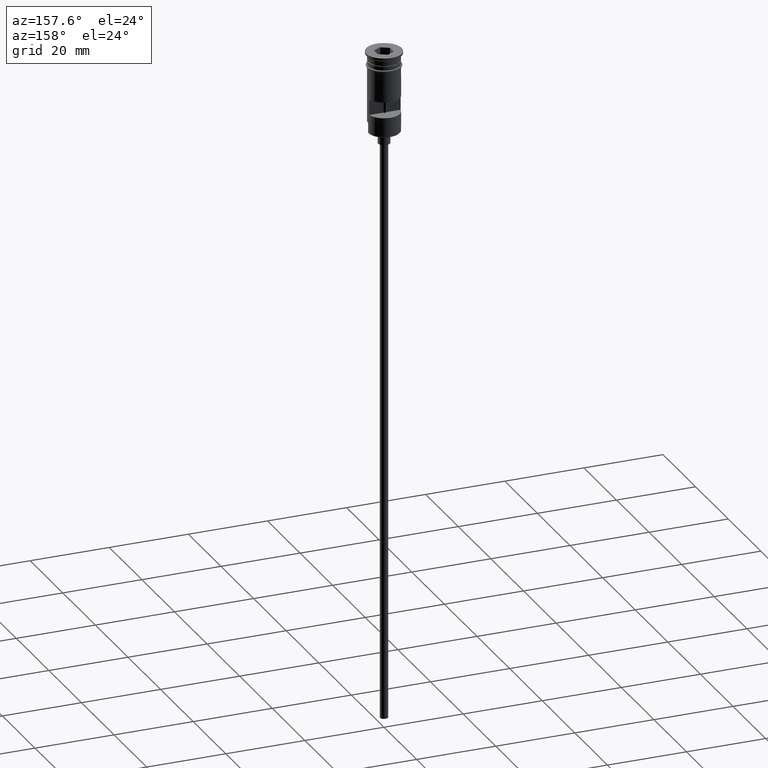
[diagram: clean part render]
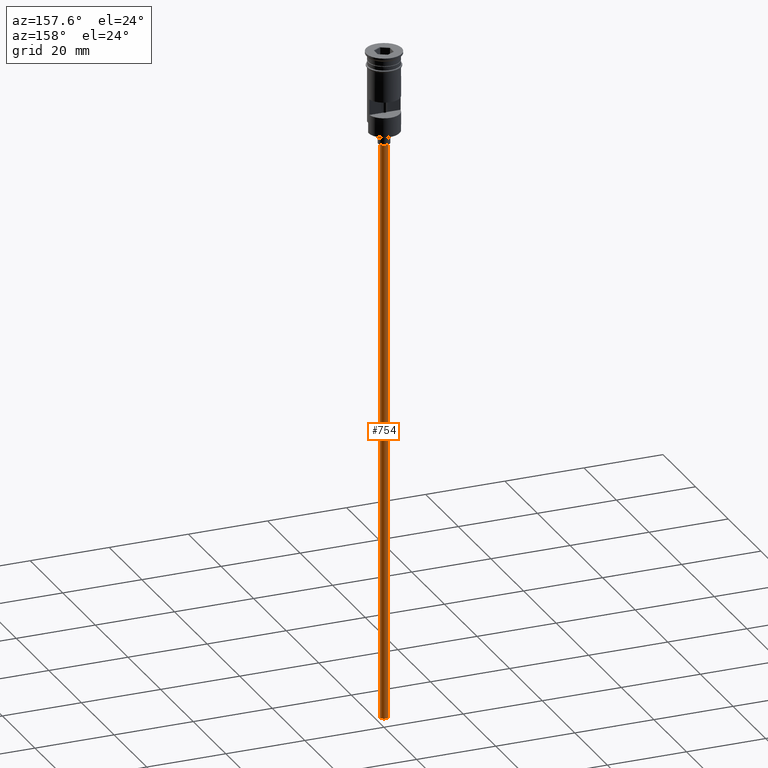
[diagram: same view with one face highlighted and labeled with its STEP entity id]
A machine part, auxiliary view. The second image highlights one B-rep face of the part: STEP entity #754.
In plain terms, the highlighted cylindrical surface (edge-blend (fillet) strip) has radius 1 mm, axis along (-0, -0, 1).
Its self-contained STEP definition (entity closure, byte-faithful):
#85 = CARTESIAN_POINT ( 'NONE',  ( -0.9999999999999997780, 1.224646799147352961E-16, -23.49999999999999645 ) ) ;
#248 = AXIS2_PLACEMENT_3D ( 'NONE', #930, #1136, #1039 ) ;
#327 = DIRECTION ( 'NONE',  ( 1.000000000000000000, 0.000000000000000000, 0.000000000000000000 ) ) ;
#336 = CYLINDRICAL_SURFACE ( 'NONE', #1152, 0.9999999999999997780 ) ;
#403 = EDGE_LOOP ( 'NONE', ( #694, #533, #700, #980 ) ) ;
#439 = DIRECTION ( 'NONE',  ( -0.000000000000000000, -0.000000000000000000, 1.000000000000000000 ) ) ;
#449 = LINE ( 'NONE', #855, #794 ) ;
#488 = VERTEX_POINT ( 'NONE', #1274 ) ;
#500 = EDGE_CURVE ( 'NONE', #1350, #488, #1236, .T. ) ;
#533 = ORIENTED_EDGE ( 'NONE', *, *, #635, .T. ) ;
#635 = EDGE_CURVE ( 'NONE', #1094, #1350, #1323, .T. ) ;
#694 = ORIENTED_EDGE ( 'NONE', *, *, #1107, .F. ) ;
#700 = ORIENTED_EDGE ( 'NONE', *, *, #500, .T. ) ;
#716 = EDGE_CURVE ( 'NONE', #1105, #488, #449, .T. ) ;
#717 = DIRECTION ( 'NONE',  ( -1.000000000000000000, 0.000000000000000000, 0.000000000000000000 ) ) ;
#753 = CIRCLE ( 'NONE', #1585, 0.9999999999999997780 ) ;
#754 = ADVANCED_FACE ( 'NONE', ( #1305 ), #336, .T. ) ;
#794 = VECTOR ( 'NONE', #1056, 1000.000000000000000 ) ;
#826 = CARTESIAN_POINT ( 'NONE',  ( -0.9999999999999997780, 1.224646799147352961E-16, -170.4999999999999716 ) ) ;
#835 = CARTESIAN_POINT ( 'NONE',  ( 0.000000000000000000, 0.000000000000000000, -170.4999999999999716 ) ) ;
#855 = CARTESIAN_POINT ( 'NONE',  ( 0.9999999999999997780, 0.000000000000000000, -170.4999999999999716 ) ) ;
#930 = CARTESIAN_POINT ( 'NONE',  ( 0.000000000000000000, 0.000000000000000000, -23.49999999999999645 ) ) ;
#942 = DIRECTION ( 'NONE',  ( 0.000000000000000000, 0.000000000000000000, -1.000000000000000000 ) ) ;
#980 = ORIENTED_EDGE ( 'NONE', *, *, #716, .F. ) ;
#1039 = DIRECTION ( 'NONE',  ( -1.000000000000000000, 0.000000000000000000, 0.000000000000000000 ) ) ;
#1053 = VECTOR ( 'NONE', #1066, 1000.000000000000000 ) ;
#1056 = DIRECTION ( 'NONE',  ( -0.000000000000000000, -0.000000000000000000, 1.000000000000000000 ) ) ;
#1066 = DIRECTION ( 'NONE',  ( -0.000000000000000000, -0.000000000000000000, 1.000000000000000000 ) ) ;
#1084 = CARTESIAN_POINT ( 'NONE',  ( 0.9999999999999997780, 0.000000000000000000, -170.4999999999999716 ) ) ;
#1094 = VERTEX_POINT ( 'NONE', #826 ) ;
#1105 = VERTEX_POINT ( 'NONE', #1084 ) ;
#1107 = EDGE_CURVE ( 'NONE', #1094, #1105, #753, .T. ) ;
#1136 = DIRECTION ( 'NONE',  ( 0.000000000000000000, 0.000000000000000000, -1.000000000000000000 ) ) ;
#1152 = AXIS2_PLACEMENT_3D ( 'NONE', #1432, #439, #327 ) ;
#1236 = CIRCLE ( 'NONE', #248, 0.9999999999999997780 ) ;
#1274 = CARTESIAN_POINT ( 'NONE',  ( 0.9999999999999997780, 0.000000000000000000, -23.49999999999999645 ) ) ;
#1305 = FACE_OUTER_BOUND ( 'NONE', #403, .T. ) ;
#1323 = LINE ( 'NONE', #1463, #1053 ) ;
#1350 = VERTEX_POINT ( 'NONE', #85 ) ;
#1432 = CARTESIAN_POINT ( 'NONE',  ( 0.000000000000000000, 0.000000000000000000, -170.4999999999999716 ) ) ;
#1463 = CARTESIAN_POINT ( 'NONE',  ( -0.9999999999999997780, 1.224646799147352961E-16, -170.4999999999999716 ) ) ;
#1585 = AXIS2_PLACEMENT_3D ( 'NONE', #835, #942, #717 ) ;